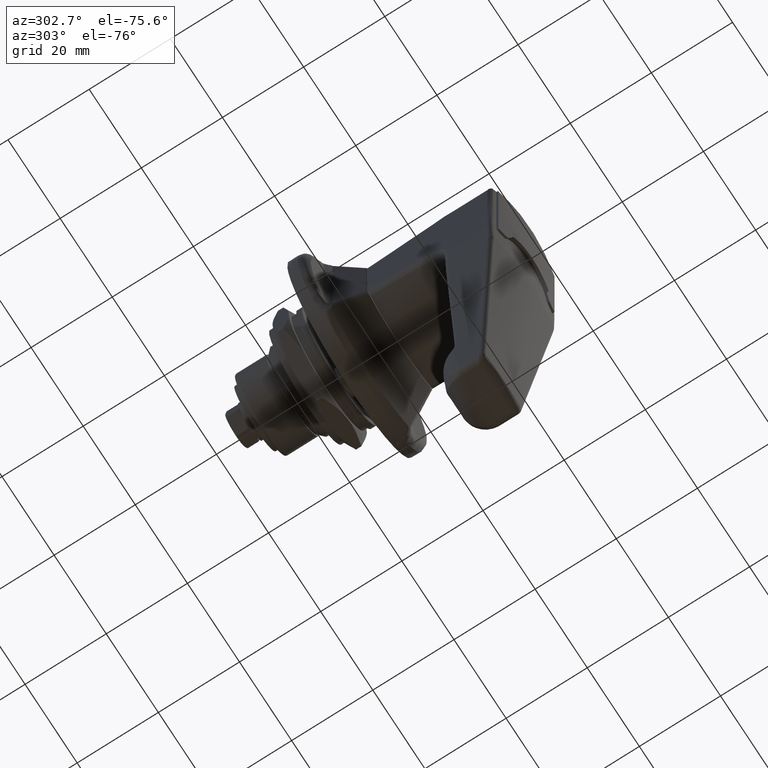
[diagram: clean part render]
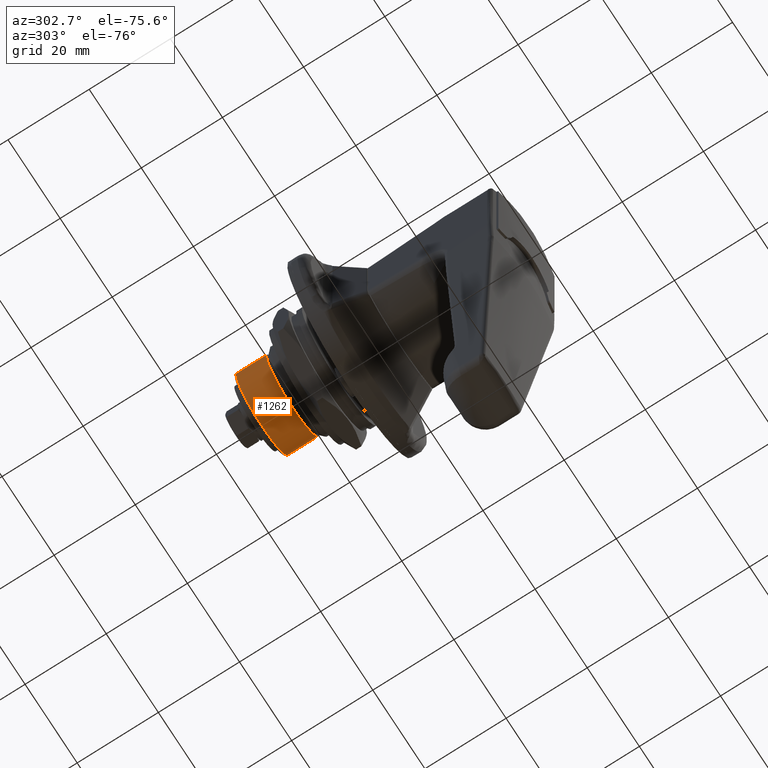
[diagram: same view with one face highlighted and labeled with its STEP entity id]
A machine part, auxiliary view. The second image highlights one B-rep face of the part: STEP entity #1262.
In plain terms, the highlighted face is a freeform B-spline surface patch.
Its self-contained STEP definition (entity closure, byte-faithful):
#1128=CARTESIAN_POINT('',(21.787500003129491,6.225146366376192,7.826081568524137));
#1129=CARTESIAN_POINT('',(21.787500003129491,14.051227934900330,1.600935202147946));
#1130=CARTESIAN_POINT('',(21.787500003129491,7.826081568524137,-6.225146366376192));
#1131=CARTESIAN_POINT('',(21.787500003129491,1.600935202147946,-14.051227934900330));
#1132=CARTESIAN_POINT('',(21.787500003129491,-6.225146366376192,-7.826081568524137));
#1133=CARTESIAN_POINT('',(21.787500003129491,-14.051227934900330,-1.600935202147946));
#1134=CARTESIAN_POINT('',(21.787500003129491,-7.826081568524137,6.225146366376192));
#1135=CARTESIAN_POINT('',(13.907812499921761,6.225146366376192,7.826081568524137));
#1136=CARTESIAN_POINT('',(13.907812499921759,14.051227934900330,1.600935202147946));
#1137=CARTESIAN_POINT('',(13.907812499921761,7.826081568524137,-6.225146366376192));
#1138=CARTESIAN_POINT('',(13.907812499921759,1.600935202147946,-14.051227934900330));
#1139=CARTESIAN_POINT('',(13.907812499921761,-6.225146366376192,-7.826081568524137));
#1140=CARTESIAN_POINT('',(13.907812499921759,-14.051227934900330,-1.600935202147946));
#1141=CARTESIAN_POINT('',(13.907812499921761,-7.826081568524137,6.225146366376192));
#1149=(BOUNDED_SURFACE()B_SPLINE_SURFACE(2,1,((#1128,#1135),(#1129,#1136),(#1130,#1137),(#1131,#1138),(#1132,#1139),(#1133,#1140),(#1134,#1141)),.UNSPECIFIED.,.F.,.F.,.U.)B_SPLINE_SURFACE_WITH_KNOTS((3,2,2,3),(2,2),(0.0,16.568542494923800,33.137084989847587,49.705627484771377),(0.0,7.879687503207730),.UNSPECIFIED.)GEOMETRIC_REPRESENTATION_ITEM()RATIONAL_B_SPLINE_SURFACE(((1.0,1.0),(0.707106781186548,0.707106781186548),(1.0,1.0),(0.707106781186548,0.707106781186548),(1.0,1.0),(0.707106781186548,0.707106781186548),(1.0,1.0)))REPRESENTATION_ITEM('')SURFACE());
#1150=CARTESIAN_POINT('',(21.600000000664028,6.225142916136178,7.826084312966478));
#1151=VERTEX_POINT('',#1150);
#1152=CARTESIAN_POINT('',(21.600000003053161,10.0,5.018055E-014));
#1153=VERTEX_POINT('',#1152);
#1154=CARTESIAN_POINT('',(21.600000000664028,6.225142916136178,7.826084312966479));
#1155=CARTESIAN_POINT('',(21.600000001580486,9.999999999999949,4.823430125341949));
#1156=CARTESIAN_POINT('',(21.600000003053164,10.0,5.018055E-014));
#1164=(BOUNDED_CURVE()B_SPLINE_CURVE(2,(#1154,#1155,#1156),.UNSPECIFIED.,.F.,.U.)B_SPLINE_CURVE_WITH_KNOTS((3,3),(0.107863810655688,0.249999999999998),.UNSPECIFIED.)CURVE()GEOMETRIC_REPRESENTATION_ITEM()RATIONAL_B_SPLINE_CURVE((0.856305640080936,0.833477095972264,0.999999999999996))REPRESENTATION_ITEM(''));
#1165=EDGE_CURVE('',#1151,#1153,#1164,.T.);
#1166=ORIENTED_EDGE('',*,*,#1165,.T.);
#1167=CARTESIAN_POINT('',(21.600000000000001,0.0,-10.0));
#1168=VERTEX_POINT('',#1167);
#1169=CARTESIAN_POINT('',(21.600000003053175,10.0,5.018055E-014));
#1170=CARTESIAN_POINT('',(21.600000000000009,10.000000000000099,-10.0));
#1171=CARTESIAN_POINT('',(21.600000000000001,0.0,-10.0));
#1179=(BOUNDED_CURVE()B_SPLINE_CURVE(2,(#1169,#1170,#1171),.UNSPECIFIED.,.F.,.U.)B_SPLINE_CURVE_WITH_KNOTS((3,3),(0.249999999999998,0.500000000000000),.UNSPECIFIED.)CURVE()GEOMETRIC_REPRESENTATION_ITEM()RATIONAL_B_SPLINE_CURVE((1.000000000000004,0.707106781186546,1.0))REPRESENTATION_ITEM(''));
#1180=EDGE_CURVE('',#1153,#1168,#1179,.T.);
#1181=ORIENTED_EDGE('',*,*,#1180,.T.);
#1182=CARTESIAN_POINT('',(21.600000002715749,-9.933116387832968,-1.154642293424279));
#1183=VERTEX_POINT('',#1182);
#1184=CARTESIAN_POINT('',(21.600000000000001,0.0,-10.0));
#1185=CARTESIAN_POINT('',(21.600000000000005,-8.904917007992253,-10.0));
#1186=CARTESIAN_POINT('',(21.600000002715745,-9.933116387832968,-1.154642293424279));
#1194=(BOUNDED_CURVE()B_SPLINE_CURVE(2,(#1184,#1185,#1186),.UNSPECIFIED.,.F.,.U.)B_SPLINE_CURVE_WITH_KNOTS((3,3),(0.500000000000000,0.729999999994770),.UNSPECIFIED.)CURVE()GEOMETRIC_REPRESENTATION_ITEM()RATIONAL_B_SPLINE_CURVE((1.0,0.730538238697751,0.956886118180366))REPRESENTATION_ITEM(''));
#1195=EDGE_CURVE('',#1168,#1183,#1194,.T.);
#1196=ORIENTED_EDGE('',*,*,#1195,.T.);
#1197=CARTESIAN_POINT('',(21.600000000000279,-7.826084312518447,6.225142916699438));
#1198=VERTEX_POINT('',#1197);
#1199=CARTESIAN_POINT('',(21.600000002715745,-9.933116387832968,-1.154642293424279));
#1200=CARTESIAN_POINT('',(21.600000000000001,-10.0,-0.579258291133863));
#1201=CARTESIAN_POINT('',(21.600000000000001,-10.0,0.0));
#1202=CARTESIAN_POINT('',(21.600000000000005,-10.000000000000002,3.492153861478230));
#1203=CARTESIAN_POINT('',(21.600000000000275,-7.826084312518447,6.225142916699438));
#1211=(BOUNDED_CURVE()B_SPLINE_CURVE(2,(#1199,#1200,#1201,#1202,#1203),.UNSPECIFIED.,.F.,.U.)B_SPLINE_CURVE_WITH_KNOTS((3,2,3),(0.729999999994771,0.750000000000000,0.857863810666583),.UNSPECIFIED.)CURVE()GEOMETRIC_REPRESENTATION_ITEM()RATIONAL_B_SPLINE_CURVE((0.956886118180367,0.976568542488797,1.0,0.873629685201519,0.856305640077437))REPRESENTATION_ITEM(''));
#1212=EDGE_CURVE('',#1183,#1198,#1211,.T.);
#1213=ORIENTED_EDGE('',*,*,#1212,.T.);
#1214=CARTESIAN_POINT('',(14.100000000000000,-7.826084243163598,6.225143003890590));
#1215=VERTEX_POINT('',#1214);
#1216=CARTESIAN_POINT('',(21.600000000000279,-7.826084312518447,6.225142916699438));
#1217=CARTESIAN_POINT('',(14.100000000000000,-7.826084243163598,6.225143003890590));
#1218=QUASI_UNIFORM_CURVE('',1,(#1216,#1217),.UNSPECIFIED.,.F.,.U.);
#1219=EDGE_CURVE('',#1198,#1215,#1218,.T.);
#1220=ORIENTED_EDGE('',*,*,#1219,.T.);
#1221=CARTESIAN_POINT('',(14.100000000000000,0.0,-10.0));
#1222=VERTEX_POINT('',#1221);
#1223=CARTESIAN_POINT('',(14.100000000000000,0.0,-10.0));
#1224=CARTESIAN_POINT('',(14.100000000000000,-10.000000000000002,-10.000000000000002));
#1225=CARTESIAN_POINT('',(14.100000000000000,-10.0,0.0));
#1226=CARTESIAN_POINT('',(14.100000000000003,-9.999999999999998,3.492153923977045));
#1227=CARTESIAN_POINT('',(14.099999999999993,-7.826084243163598,6.225143003890590));
#1235=(BOUNDED_CURVE()B_SPLINE_CURVE(2,(#1223,#1224,#1225,#1226,#1227),.UNSPECIFIED.,.F.,.U.)B_SPLINE_CURVE_WITH_KNOTS((3,2,3),(0.500000000000000,0.750000000000000,0.857863812353064),.UNSPECIFIED.)CURVE()GEOMETRIC_REPRESENTATION_ITEM()RATIONAL_B_SPLINE_CURVE((1.0,0.707106781186548,1.0,0.873629683225683,0.856305639535704))REPRESENTATION_ITEM(''));
#1236=EDGE_CURVE('',#1222,#1215,#1235,.T.);
#1237=ORIENTED_EDGE('',*,*,#1236,.F.);
#1238=CARTESIAN_POINT('',(14.100000000000000,6.225142957720754,7.826084279888679));
#1239=VERTEX_POINT('',#1238);
#1240=CARTESIAN_POINT('',(14.100000000000000,6.225142957720754,7.826084279888679));
#1241=CARTESIAN_POINT('',(14.099999999999996,10.0,4.823430092592857));
#1242=CARTESIAN_POINT('',(14.100000000000000,10.0,0.0));
#1243=CARTESIAN_POINT('',(14.100000000000000,10.000000000000002,-10.000000000000002));
#1244=CARTESIAN_POINT('',(14.100000000000000,0.0,-10.0));
#1252=(BOUNDED_CURVE()B_SPLINE_CURVE(2,(#1240,#1241,#1242,#1243,#1244),.UNSPECIFIED.,.F.,.U.)B_SPLINE_CURVE_WITH_KNOTS((3,2,3),(0.107863811460031,0.250000000000000,0.500000000000000),.UNSPECIFIED.)CURVE()GEOMETRIC_REPRESENTATION_ITEM()RATIONAL_B_SPLINE_CURVE((0.856305639822565,0.833477096914611,1.0,0.707106781186548,1.0))REPRESENTATION_ITEM(''));
#1253=EDGE_CURVE('',#1239,#1222,#1252,.T.);
#1254=ORIENTED_EDGE('',*,*,#1253,.F.);
#1255=CARTESIAN_POINT('',(21.600000000664028,6.225142916136178,7.826084312966478));
#1256=CARTESIAN_POINT('',(14.100000000000000,6.225142957720754,7.826084279888679));
#1257=QUASI_UNIFORM_CURVE('',1,(#1255,#1256),.UNSPECIFIED.,.F.,.U.);
#1258=EDGE_CURVE('',#1151,#1239,#1257,.T.);
#1259=ORIENTED_EDGE('',*,*,#1258,.F.);
#1260=EDGE_LOOP('',(#1166,#1181,#1196,#1213,#1220,#1237,#1254,#1259));
#1261=FACE_OUTER_BOUND('',#1260,.T.);
#1262=ADVANCED_FACE('',(#1261),#1149,.T.);